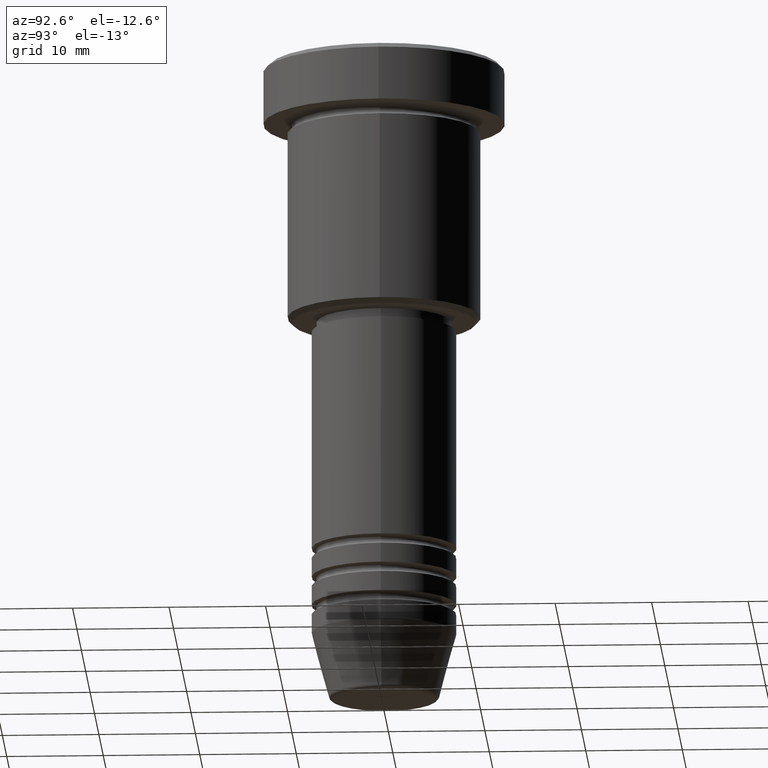
[diagram: clean part render]
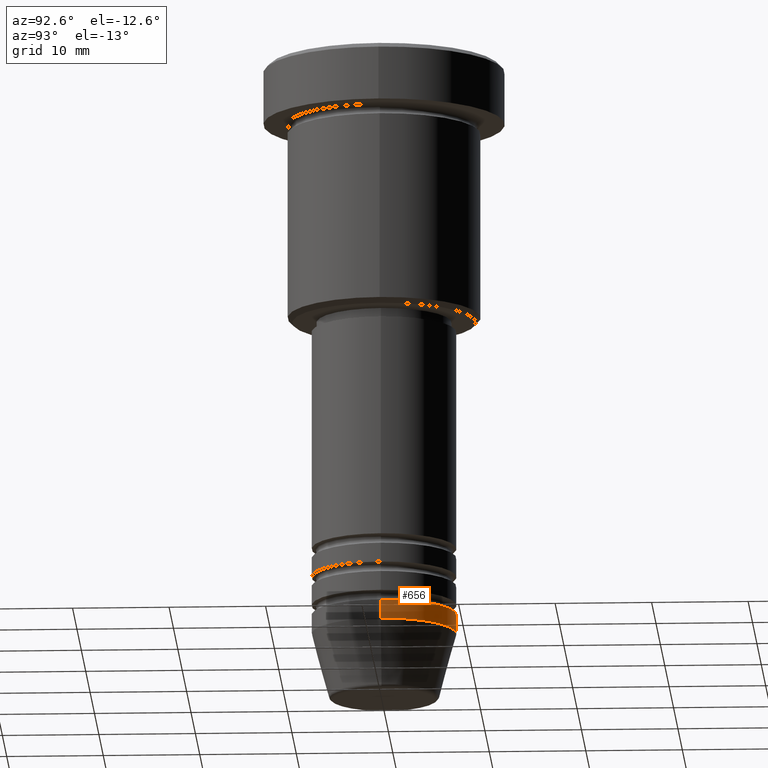
[diagram: same view with one face highlighted and labeled with its STEP entity id]
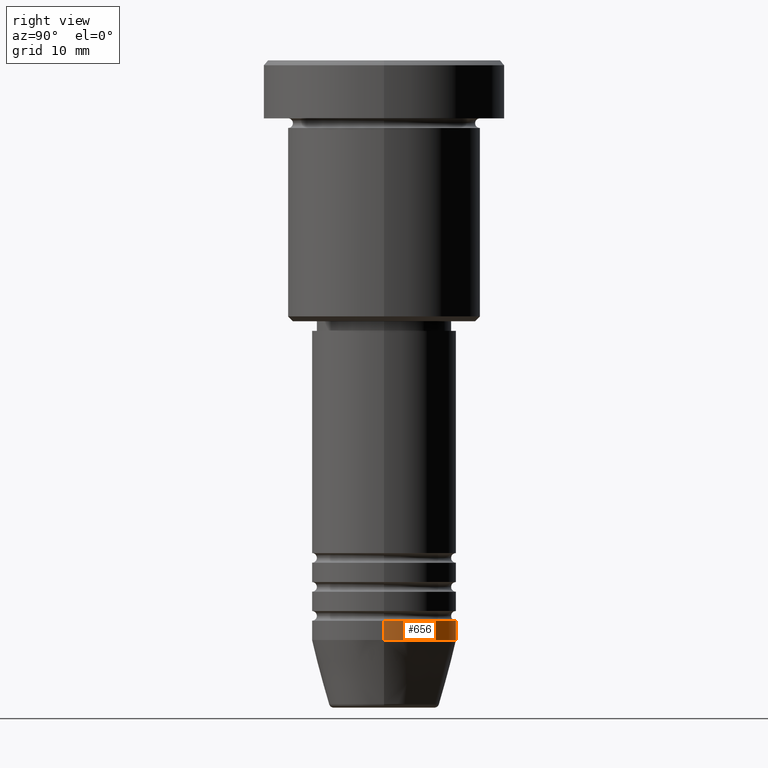
[diagram: same view with one face highlighted and labeled with its STEP entity id]
A machine part, auxiliary view. The second image highlights one B-rep face of the part: STEP entity #656.
A second angle (right view) of the same face is appended — the face is thin or edge-on in the first view.
In plain terms, the highlighted cylindrical surface (partial cylindrical patch) has radius 7.5 mm, axis along (-0, -0, 1).
Its self-contained STEP definition (entity closure, byte-faithful):
#7 = EDGE_CURVE ( 'NONE', #419, #321, #933, .T. ) ;
#19 = CARTESIAN_POINT ( 'NONE',  ( 0.000000000000000000, 0.000000000000000000, -60.00000000000000000 ) ) ;
#48 = DIRECTION ( 'NONE',  ( -0.000000000000000000, -0.000000000000000000, 1.000000000000000000 ) ) ;
#85 = EDGE_CURVE ( 'NONE', #142, #321, #152, .T. ) ;
#116 = ORIENTED_EDGE ( 'NONE', *, *, #7, .F. ) ;
#142 = VERTEX_POINT ( 'NONE', #418 ) ;
#152 = LINE ( 'NONE', #409, #185 ) ;
#157 = LINE ( 'NONE', #248, #1148 ) ;
#161 = CARTESIAN_POINT ( 'NONE',  ( -7.500000000000000000, 9.184850993605147944E-16, -57.99999999999999289 ) ) ;
#173 = DIRECTION ( 'NONE',  ( -0.000000000000000000, -0.000000000000000000, 1.000000000000000000 ) ) ;
#174 = VERTEX_POINT ( 'NONE', #492 ) ;
#185 = VECTOR ( 'NONE', #48, 1000.000000000000000 ) ;
#207 = DIRECTION ( 'NONE',  ( 1.000000000000000000, 0.000000000000000000, 0.000000000000000000 ) ) ;
#248 = CARTESIAN_POINT ( 'NONE',  ( 7.500000000000000000, 0.000000000000000000, 0.000000000000000000 ) ) ;
#256 = EDGE_CURVE ( 'NONE', #174, #419, #157, .T. ) ;
#302 = ORIENTED_EDGE ( 'NONE', *, *, #513, .T. ) ;
#321 = VERTEX_POINT ( 'NONE', #161 ) ;
#371 = CIRCLE ( 'NONE', #839, 7.500000000000000000 ) ;
#393 = DIRECTION ( 'NONE',  ( -0.000000000000000000, -0.000000000000000000, 1.000000000000000000 ) ) ;
#395 = DIRECTION ( 'NONE',  ( -0.000000000000000000, -0.000000000000000000, 1.000000000000000000 ) ) ;
#403 = AXIS2_PLACEMENT_3D ( 'NONE', #482, #393, #1039 ) ;
#409 = CARTESIAN_POINT ( 'NONE',  ( -7.500000000000000000, 9.184850993605147944E-16, 0.000000000000000000 ) ) ;
#418 = CARTESIAN_POINT ( 'NONE',  ( -7.500000000000000000, 9.184850993605147944E-16, -60.00000000000000000 ) ) ;
#419 = VERTEX_POINT ( 'NONE', #1136 ) ;
#482 = CARTESIAN_POINT ( 'NONE',  ( 0.000000000000000000, 0.000000000000000000, -57.99999999999999289 ) ) ;
#492 = CARTESIAN_POINT ( 'NONE',  ( 7.500000000000000000, 0.000000000000000000, -60.00000000000000000 ) ) ;
#502 = ORIENTED_EDGE ( 'NONE', *, *, #256, .F. ) ;
#513 = EDGE_CURVE ( 'NONE', #174, #142, #371, .T. ) ;
#656 = ADVANCED_FACE ( 'NONE', ( #1123 ), #949, .T. ) ;
#839 = AXIS2_PLACEMENT_3D ( 'NONE', #19, #173, #912 ) ;
#861 = CARTESIAN_POINT ( 'NONE',  ( 0.000000000000000000, 0.000000000000000000, 0.000000000000000000 ) ) ;
#889 = DIRECTION ( 'NONE',  ( -0.000000000000000000, -0.000000000000000000, 1.000000000000000000 ) ) ;
#912 = DIRECTION ( 'NONE',  ( 1.000000000000000000, 0.000000000000000000, 0.000000000000000000 ) ) ;
#933 = CIRCLE ( 'NONE', #403, 7.500000000000000000 ) ;
#949 = CYLINDRICAL_SURFACE ( 'NONE', #956, 7.500000000000000000 ) ;
#956 = AXIS2_PLACEMENT_3D ( 'NONE', #861, #395, #207 ) ;
#1026 = ORIENTED_EDGE ( 'NONE', *, *, #85, .T. ) ;
#1039 = DIRECTION ( 'NONE',  ( 1.000000000000000000, 0.000000000000000000, 0.000000000000000000 ) ) ;
#1123 = FACE_OUTER_BOUND ( 'NONE', #1172, .T. ) ;
#1136 = CARTESIAN_POINT ( 'NONE',  ( 7.500000000000000000, 0.000000000000000000, -57.99999999999999289 ) ) ;
#1148 = VECTOR ( 'NONE', #889, 1000.000000000000000 ) ;
#1172 = EDGE_LOOP ( 'NONE', ( #302, #1026, #116, #502 ) ) ;